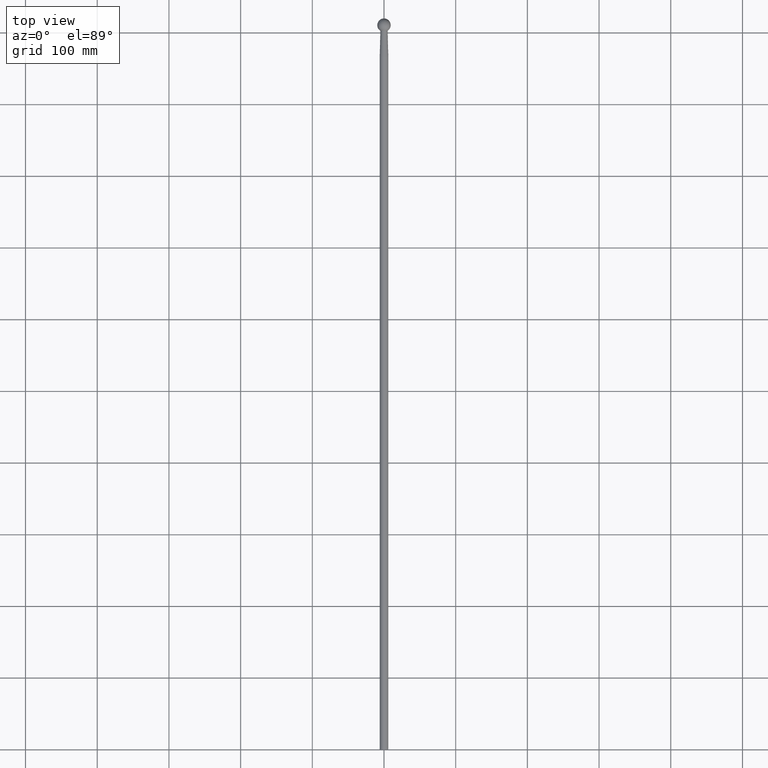
[diagram: clean part render]
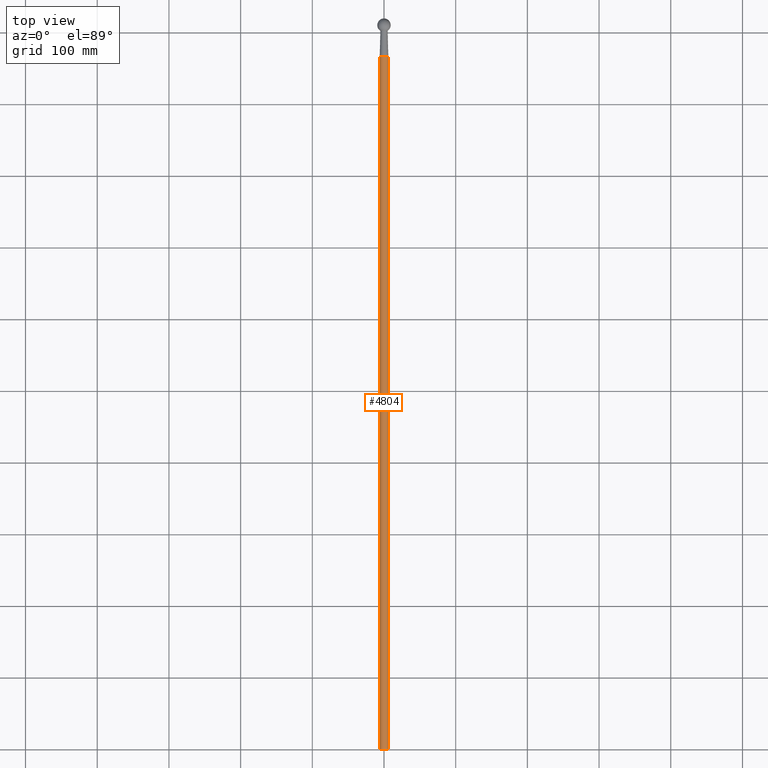
[diagram: same view with one face highlighted and labeled with its STEP entity id]
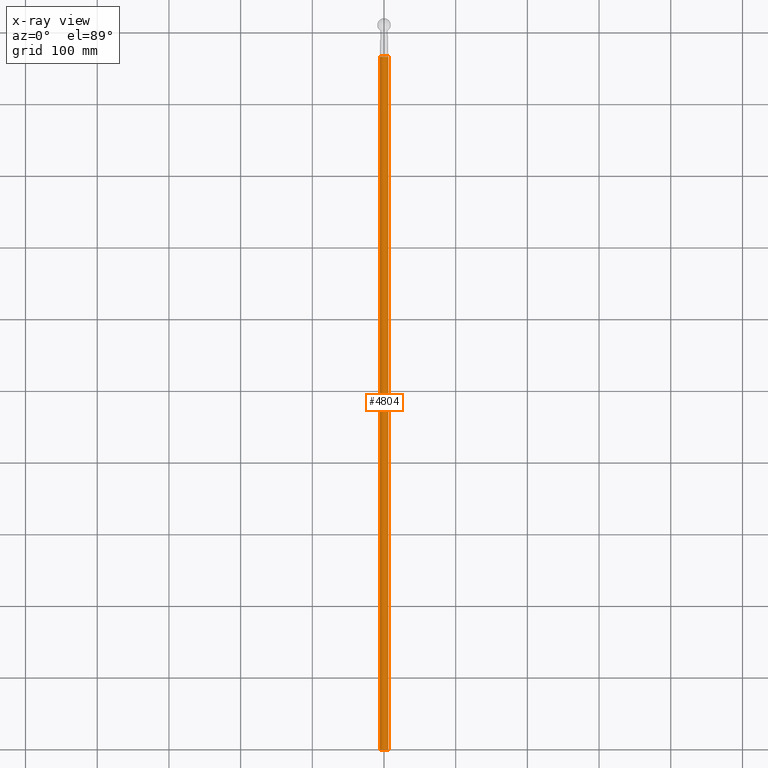
[diagram: x-ray of the same camera — body ghosted, the highlighted face saturated]
A machine part, top view. The second image highlights one B-rep face of the part: STEP entity #4804.
The next image is the same camera in x-ray: the body ghosted, the highlighted face saturated — about 0% of this face is hidden behind the body in this view.
In plain terms, the highlighted cylindrical surface (bore or boss wall) has radius 6 mm, axis along (-0, -1, -0).
Its self-contained STEP definition (entity closure, byte-faithful):
#434 = DIRECTION ( 'NONE',  ( -0.000000000000000000, -1.000000000000000000, -0.000000000000000000 ) ) ;
#1066 = CARTESIAN_POINT ( 'NONE',  ( 0.000000000000000000, 966.4222527892984544, 0.000000000000000000 ) ) ;
#1561 = EDGE_LOOP ( 'NONE', ( #9028 ) ) ;
#2015 = EDGE_CURVE ( 'NONE', #7212, #7212, #8872, .T. ) ;
#2733 = FACE_OUTER_BOUND ( 'NONE', #1561, .T. ) ;
#2832 = CARTESIAN_POINT ( 'NONE',  ( 0.000000000000000000, 966.4222527892984544, -6.000000000000000000 ) ) ;
#3698 = DIRECTION ( 'NONE',  ( 0.000000000000000000, 0.000000000000000000, -1.000000000000000000 ) ) ;
#4532 = AXIS2_PLACEMENT_3D ( 'NONE', #6890, #10132, #3698 ) ;
#4804 = ADVANCED_FACE ( 'NONE', ( #2733, #9306 ), #5002, .T. ) ;
#5002 = CYLINDRICAL_SURFACE ( 'NONE', #6541, 6.000000000000000000 ) ;
#5092 = DIRECTION ( 'NONE',  ( -0.000000000000000000, -1.000000000000000000, -0.000000000000000000 ) ) ;
#5486 = EDGE_LOOP ( 'NONE', ( #6788 ) ) ;
#5631 = CIRCLE ( 'NONE', #7639, 6.000000000000000000 ) ;
#6106 = CARTESIAN_POINT ( 'NONE',  ( 0.000000000000000000, 0.000000000000000000, -6.000000000000000000 ) ) ;
#6541 = AXIS2_PLACEMENT_3D ( 'NONE', #10114, #434, #10219 ) ;
#6788 = ORIENTED_EDGE ( 'NONE', *, *, #2015, .F. ) ;
#6890 = CARTESIAN_POINT ( 'NONE',  ( 0.000000000000000000, 0.000000000000000000, 0.000000000000000000 ) ) ;
#7212 = VERTEX_POINT ( 'NONE', #6106 ) ;
#7434 = EDGE_CURVE ( 'NONE', #10234, #10234, #5631, .T. ) ;
#7639 = AXIS2_PLACEMENT_3D ( 'NONE', #1066, #5092, #9194 ) ;
#8872 = CIRCLE ( 'NONE', #4532, 6.000000000000000000 ) ;
#9028 = ORIENTED_EDGE ( 'NONE', *, *, #7434, .T. ) ;
#9194 = DIRECTION ( 'NONE',  ( 0.000000000000000000, 0.000000000000000000, -1.000000000000000000 ) ) ;
#9306 = FACE_OUTER_BOUND ( 'NONE', #5486, .T. ) ;
#10114 = CARTESIAN_POINT ( 'NONE',  ( 0.000000000000000000, 0.000000000000000000, 0.000000000000000000 ) ) ;
#10132 = DIRECTION ( 'NONE',  ( -0.000000000000000000, -1.000000000000000000, -0.000000000000000000 ) ) ;
#10219 = DIRECTION ( 'NONE',  ( 0.000000000000000000, 0.000000000000000000, -1.000000000000000000 ) ) ;
#10234 = VERTEX_POINT ( 'NONE', #2832 ) ;